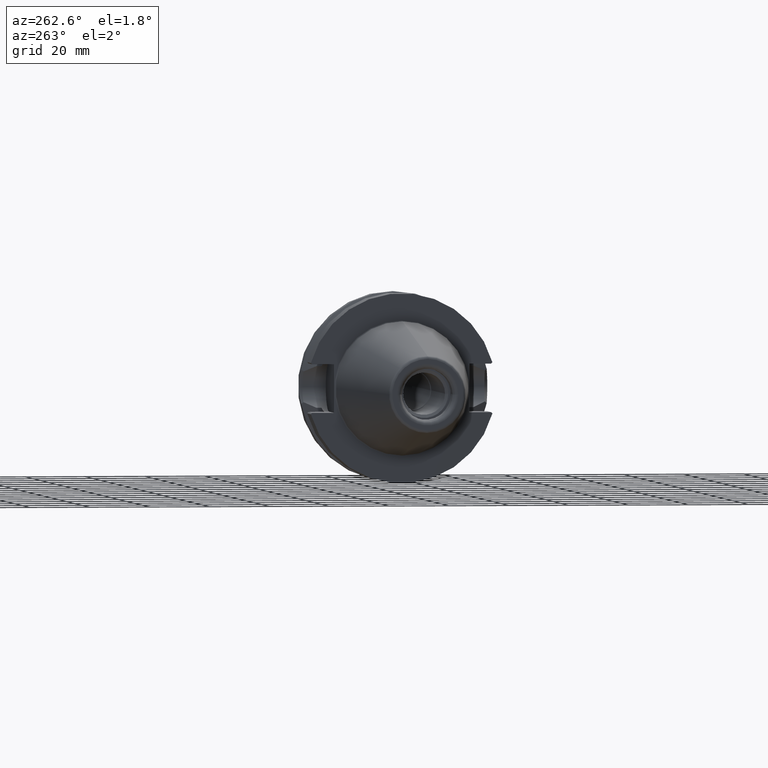
[diagram: clean part render]
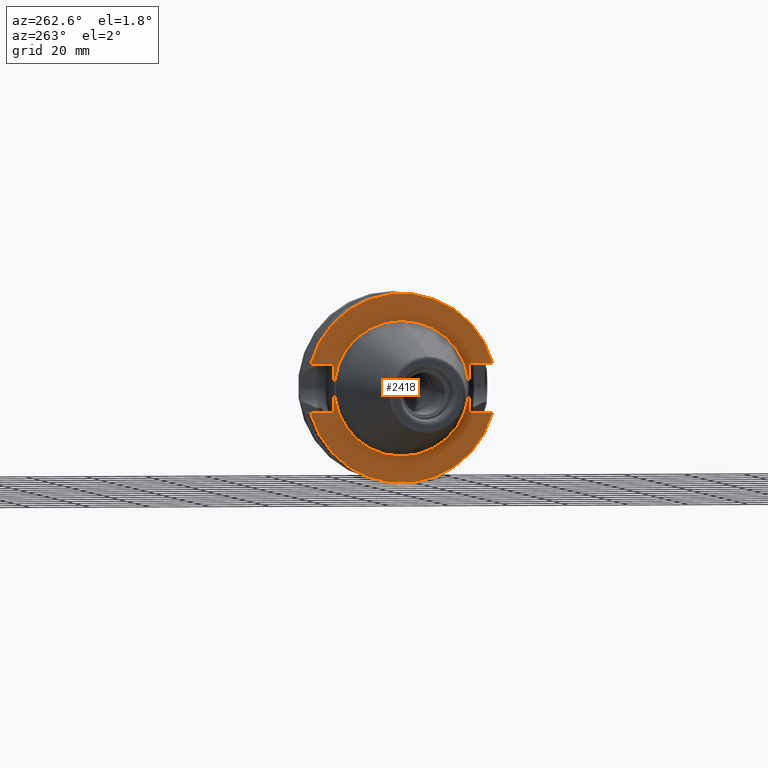
[diagram: same view with one face highlighted and labeled with its STEP entity id]
A machine part, auxiliary view. The second image highlights one B-rep face of the part: STEP entity #2418.
In plain terms, the highlighted planar face has unit normal (-1, 0, 0).
Its self-contained STEP definition (entity closure, byte-faithful):
#731=CARTESIAN_POINT('',(2.E0,0.E0,0.E0));
#732=DIRECTION('',(-1.E0,0.E0,0.E0));
#733=DIRECTION('',(0.E0,9.630332709368E-1,-2.693824772860E-1));
#734=AXIS2_PLACEMENT_3D('',#731,#732,#733);
#740=CARTESIAN_POINT('',(2.E0,0.E0,0.E0));
#741=DIRECTION('',(-1.E0,0.E0,0.E0));
#742=DIRECTION('',(0.E0,-9.630332709368E-1,2.693824772860E-1));
#743=AXIS2_PLACEMENT_3D('',#740,#741,#742);
#869=CARTESIAN_POINT('',(2.E0,0.E0,0.E0));
#870=DIRECTION('',(1.E0,0.E0,0.E0));
#871=DIRECTION('',(0.E0,0.E0,1.E0));
#872=AXIS2_PLACEMENT_3D('',#869,#870,#871);
#874=CARTESIAN_POINT('',(2.E0,0.E0,0.E0));
#875=DIRECTION('',(1.E0,0.E0,0.E0));
#876=DIRECTION('',(0.E0,0.E0,-1.E0));
#877=AXIS2_PLACEMENT_3D('',#874,#875,#876);
#879=DIRECTION('',(0.E0,0.E0,-1.E0));
#880=VECTOR('',#879,1.61E1);
#881=CARTESIAN_POINT('',(2.E0,-2.26E1,8.05E0));
#882=LINE('',#881,#880);
#883=DIRECTION('',(0.E0,1.E0,0.E0));
#884=VECTOR('',#883,7.3E0);
#885=CARTESIAN_POINT('',(2.E0,-2.99E1,-8.05E0));
#886=LINE('',#885,#884);
#887=DIRECTION('',(0.E0,7.071067811865E-1,7.071067811865E-1));
#888=VECTOR('',#887,6.159579374683E-1);
#889=CARTESIAN_POINT('',(2.E0,-3.033554803451E1,-8.485548034509E0));
#890=LINE('',#889,#888);
#891=DIRECTION('',(0.E0,-7.071067811865E-1,7.071067811865E-1));
#892=VECTOR('',#891,6.159579374683E-1);
#893=CARTESIAN_POINT('',(2.E0,3.033554803451E1,-8.485548034509E0));
#894=LINE('',#893,#892);
#895=DIRECTION('',(0.E0,-1.E0,0.E0));
#896=VECTOR('',#895,7.3E0);
#897=CARTESIAN_POINT('',(2.E0,2.99E1,-8.05E0));
#898=LINE('',#897,#896);
#899=DIRECTION('',(0.E0,0.E0,-1.E0));
#900=VECTOR('',#899,1.61E1);
#901=CARTESIAN_POINT('',(2.E0,2.26E1,8.05E0));
#902=LINE('',#901,#900);
#903=DIRECTION('',(0.E0,-1.E0,0.E0));
#904=VECTOR('',#903,7.3E0);
#905=CARTESIAN_POINT('',(2.E0,2.99E1,8.05E0));
#906=LINE('',#905,#904);
#907=DIRECTION('',(0.E0,-7.071067811866E-1,-7.071067811865E-1));
#908=VECTOR('',#907,6.159579374682E-1);
#909=CARTESIAN_POINT('',(2.E0,3.033554803451E1,8.485548034509E0));
#910=LINE('',#909,#908);
#911=DIRECTION('',(0.E0,7.071067811866E-1,-7.071067811865E-1));
#912=VECTOR('',#911,6.159579374682E-1);
#913=CARTESIAN_POINT('',(2.E0,-3.033554803451E1,8.485548034509E0));
#914=LINE('',#913,#912);
#915=DIRECTION('',(0.E0,1.E0,0.E0));
#916=VECTOR('',#915,7.3E0);
#917=CARTESIAN_POINT('',(2.E0,-2.99E1,8.05E0));
#918=LINE('',#917,#916);
#1034=CARTESIAN_POINT('',(2.E0,2.26E1,8.05E0));
#1035=CARTESIAN_POINT('',(2.E0,2.26E1,-8.05E0));
#1036=VERTEX_POINT('',#1034);
#1037=VERTEX_POINT('',#1035);
#1110=CARTESIAN_POINT('',(2.E0,0.E0,2.25E1));
#1111=CARTESIAN_POINT('',(2.E0,0.E0,-2.25E1));
#1112=VERTEX_POINT('',#1110);
#1113=VERTEX_POINT('',#1111);
#1146=CARTESIAN_POINT('',(2.E0,2.99E1,8.05E0));
#1147=VERTEX_POINT('',#1146);
#1148=CARTESIAN_POINT('',(2.E0,2.99E1,-8.05E0));
#1149=VERTEX_POINT('',#1148);
#1154=CARTESIAN_POINT('',(2.E0,3.033554803451E1,8.485548034509E0));
#1155=VERTEX_POINT('',#1154);
#1156=CARTESIAN_POINT('',(2.E0,3.033554803451E1,-8.485548034509E0));
#1157=VERTEX_POINT('',#1156);
#1159=CARTESIAN_POINT('',(2.E0,-3.033554803451E1,8.485548034509E0));
#1161=VERTEX_POINT('',#1159);
#1163=CARTESIAN_POINT('',(2.E0,-3.033554803451E1,-8.485548034509E0));
#1165=VERTEX_POINT('',#1163);
#1166=CARTESIAN_POINT('',(2.E0,-2.26E1,8.05E0));
#1167=CARTESIAN_POINT('',(2.E0,-2.26E1,-8.05E0));
#1168=VERTEX_POINT('',#1166);
#1169=VERTEX_POINT('',#1167);
#1170=CARTESIAN_POINT('',(2.E0,-2.99E1,8.05E0));
#1171=VERTEX_POINT('',#1170);
#1172=CARTESIAN_POINT('',(2.E0,-2.99E1,-8.05E0));
#1173=VERTEX_POINT('',#1172);
#2387=CARTESIAN_POINT('',(2.E0,0.E0,0.E0));
#2388=DIRECTION('',(-1.E0,0.E0,0.E0));
#2389=DIRECTION('',(0.E0,0.E0,-1.E0));
#2390=AXIS2_PLACEMENT_3D('',#2387,#2388,#2389);
#2391=PLANE('',#2390);
#2392=ORIENTED_EDGE('',*,*,#2381,.T.);
#2393=ORIENTED_EDGE('',*,*,#2153,.F.);
#2394=ORIENTED_EDGE('',*,*,#2314,.F.);
#2395=ORIENTED_EDGE('',*,*,#2269,.F.);
#2397=ORIENTED_EDGE('',*,*,#2396,.T.);
#2399=ORIENTED_EDGE('',*,*,#2398,.T.);
#2401=ORIENTED_EDGE('',*,*,#2400,.F.);
#2403=ORIENTED_EDGE('',*,*,#2402,.F.);
#2405=ORIENTED_EDGE('',*,*,#2404,.F.);
#2406=ORIENTED_EDGE('',*,*,#2281,.F.);
#2408=ORIENTED_EDGE('',*,*,#2407,.T.);
#2409=ORIENTED_EDGE('',*,*,#2363,.T.);
#2410=EDGE_LOOP('',(#2392,#2393,#2394,#2395,#2397,#2399,#2401,#2403,#2405,#2406,
#2408,#2409));
#2411=FACE_OUTER_BOUND('',#2410,.F.);
#2413=ORIENTED_EDGE('',*,*,#2412,.F.);
#2415=ORIENTED_EDGE('',*,*,#2414,.F.);
#2416=EDGE_LOOP('',(#2413,#2415));
#2417=FACE_BOUND('',#2416,.F.);
#2418=ADVANCED_FACE('',(#2411,#2417),#2391,.T.);
#735=CIRCLE('',#734,3.15E1);
#744=CIRCLE('',#743,3.15E1);
#873=CIRCLE('',#872,2.25E1);
#878=CIRCLE('',#877,2.25E1);
#2153=EDGE_CURVE('',#1173,#1169,#886,.T.);
#2269=EDGE_CURVE('',#1157,#1165,#735,.T.);
#2281=EDGE_CURVE('',#1161,#1155,#744,.T.);
#2314=EDGE_CURVE('',#1165,#1173,#890,.T.);
#2363=EDGE_CURVE('',#1171,#1168,#918,.T.);
#2381=EDGE_CURVE('',#1168,#1169,#882,.T.);
#2396=EDGE_CURVE('',#1157,#1149,#894,.T.);
#2398=EDGE_CURVE('',#1149,#1037,#898,.T.);
#2400=EDGE_CURVE('',#1036,#1037,#902,.T.);
#2402=EDGE_CURVE('',#1147,#1036,#906,.T.);
#2404=EDGE_CURVE('',#1155,#1147,#910,.T.);
#2407=EDGE_CURVE('',#1161,#1171,#914,.T.);
#2412=EDGE_CURVE('',#1112,#1113,#873,.T.);
#2414=EDGE_CURVE('',#1113,#1112,#878,.T.);